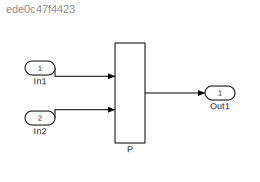
MODEL slx_ede0c47f4423
KIND model
CONFIG AbsTol = auto
CONFIG EnableMultiTasking = off
CONFIG FixedStep = auto
CONFIG MaxStep = auto
CONFIG MinStep = auto
CONFIG RelTol = 1e-3
CONFIG SampleTimeConstraint = Unconstrained
CONFIG Solver = FixedStepDiscrete
CONFIG SolverName = FixedStepDiscrete
CONFIG StartTime = 0.0
CONFIG StopTime = 10.0
BLOCK [Inport] In1
  IconDisplay = Port number
  OutDataTypeStr = single
  OutMax = 127
  OutMin = 0
  PortDimensions = 1
BLOCK [Inport] In2
  IconDisplay = Port number
  OutDataTypeStr = single
  OutMax = 127
  OutMin = 0
  Port = 2
BLOCK [Outport] Out1
  IconDisplay = Port number
BLOCK [Lookup_n-D] P
  BreakpointsForDimension1 = [11.0234502443963;33.9565508267038;97.6818490977071]
  BreakpointsForDimension1DataTypeStr = double
  BreakpointsForDimension2 = [17.0256766139778;18.3834204911663;26.3172294877731;43.4329788057747;88.8565499748245]
  BreakpointsForDimension2DataTypeStr = double
  BreakpointsForDimension3 = [5, 7]
  ExtrapMethod = Clip
  InternalRulePriority = Speed
  InterpMethod = Flat
  OutDataTypeStr = uint16
  Ports = [2, 1]
  RndMeth = Ceiling
  SaturateOnIntegerOverflow = on
  Table = [90.7907544584147 105.263096629705 85.5768524796563 112.176288684527 45.3699850297177;117.393456155526 45.3143144234739 7.13314966336627 52.2079399237946 125.58326118333;70.4702013957064 38.9609416531132 41.50473703081 63.7750349009405 59.041433882783]
  UseLastTableValue = on
LINE In1:1 -> P:1
LINE In2:1 -> P:2
LINE P:1 -> Out1:1
